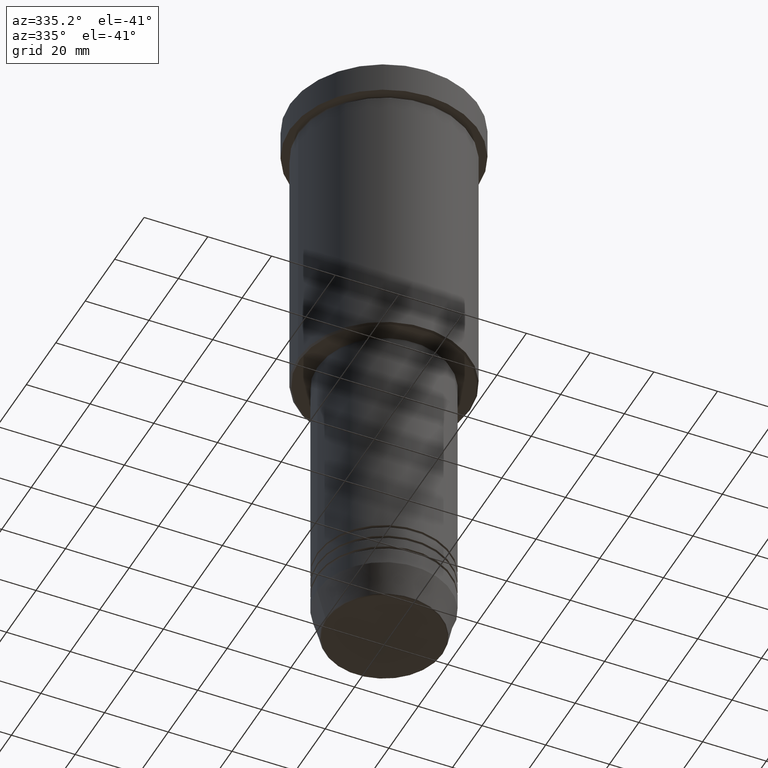
[diagram: clean part render]
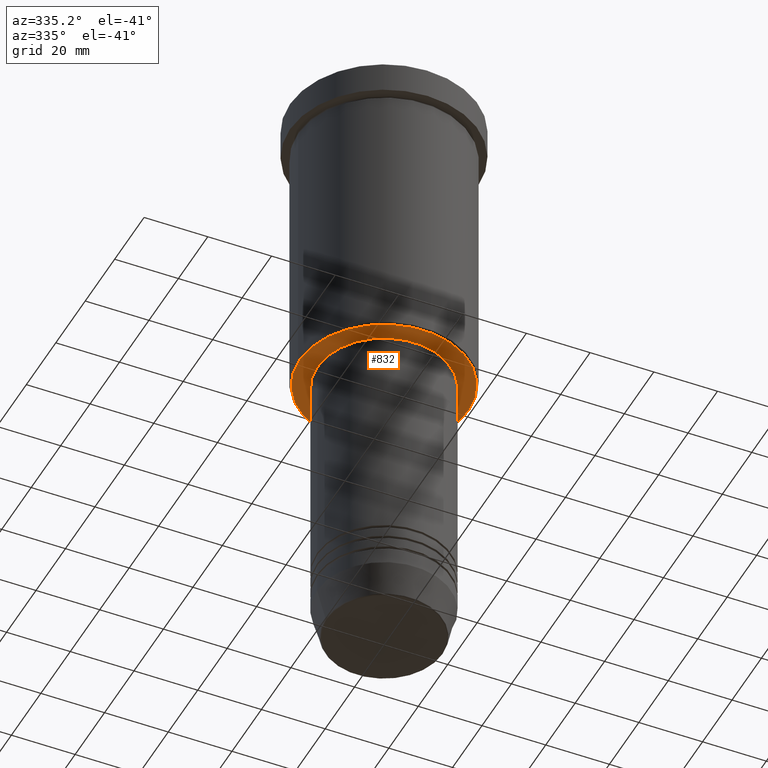
[diagram: same view with one face highlighted and labeled with its STEP entity id]
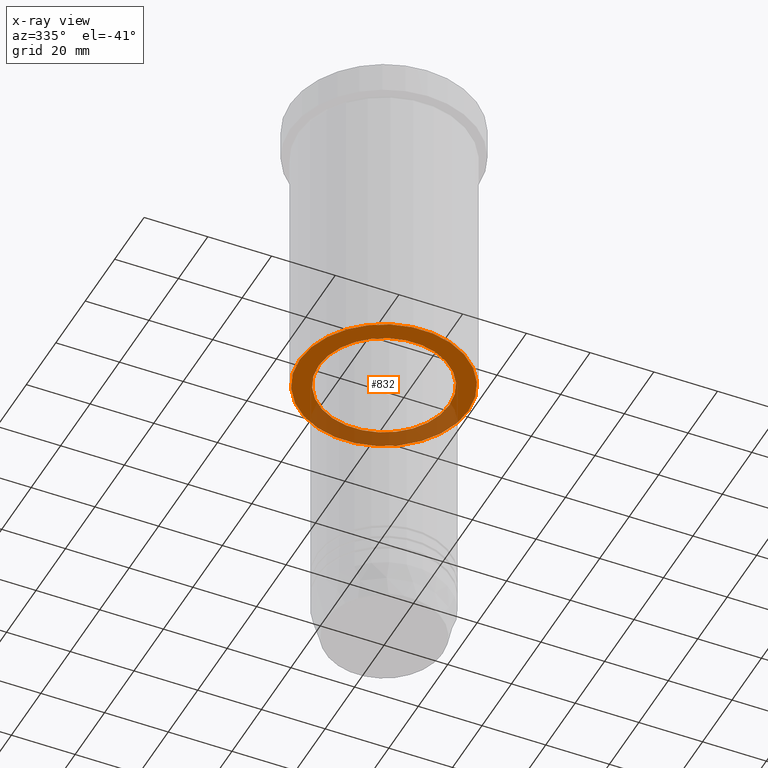
[diagram: x-ray of the same camera — body ghosted, the highlighted face saturated]
A machine part, auxiliary view. The second image highlights one B-rep face of the part: STEP entity #832.
The next image is the same camera in x-ray: the body ghosted, the highlighted face saturated — about 33% of this face is hidden behind the body in this view.
In plain terms, the highlighted planar face has unit normal (0, 0, -1).
Its self-contained STEP definition (entity closure, byte-faithful):
#12 = CIRCLE ( 'NONE', #516, 20.50000000000000000 ) ;
#45 = ORIENTED_EDGE ( 'NONE', *, *, #967, .T. ) ;
#60 = CARTESIAN_POINT ( 'NONE',  ( 20.50000000000000000, 0.000000000000000000, -96.00000000000000000 ) ) ;
#96 = VERTEX_POINT ( 'NONE', #60 ) ;
#117 = DIRECTION ( 'NONE',  ( -1.000000000000000000, 0.000000000000000000, -0.000000000000000000 ) ) ;
#141 = DIRECTION ( 'NONE',  ( -1.000000000000000000, 0.000000000000000000, 0.000000000000000000 ) ) ;
#195 = CIRCLE ( 'NONE', #479, 26.49999999999996803 ) ;
#197 = DIRECTION ( 'NONE',  ( 0.000000000000000000, 0.000000000000000000, -1.000000000000000000 ) ) ;
#202 = CARTESIAN_POINT ( 'NONE',  ( -20.50000000000000000, 2.510525938252074481E-15, -96.00000000000000000 ) ) ;
#216 = FACE_OUTER_BOUND ( 'NONE', #867, .T. ) ;
#305 = PLANE ( 'NONE',  #566 ) ;
#392 = CARTESIAN_POINT ( 'NONE',  ( -26.49999999999996803, 3.275930187719167974E-15, -96.00000000000000000 ) ) ;
#478 = AXIS2_PLACEMENT_3D ( 'NONE', #816, #1095, #1010 ) ;
#479 = AXIS2_PLACEMENT_3D ( 'NONE', #578, #961, #141 ) ;
#494 = DIRECTION ( 'NONE',  ( 0.000000000000000000, 0.000000000000000000, -1.000000000000000000 ) ) ;
#516 = AXIS2_PLACEMENT_3D ( 'NONE', #1031, #672, #852 ) ;
#566 = AXIS2_PLACEMENT_3D ( 'NONE', #574, #494, #117 ) ;
#574 = CARTESIAN_POINT ( 'NONE',  ( 0.000000000000000000, 27.00000000000000355, -96.00000000000000000 ) ) ;
#578 = CARTESIAN_POINT ( 'NONE',  ( 0.000000000000000000, 0.000000000000000000, -96.00000000000000000 ) ) ;
#620 = ORIENTED_EDGE ( 'NONE', *, *, #884, .T. ) ;
#647 = EDGE_LOOP ( 'NONE', ( #863, #963 ) ) ;
#672 = DIRECTION ( 'NONE',  ( -0.000000000000000000, -0.000000000000000000, 1.000000000000000000 ) ) ;
#708 = EDGE_CURVE ( 'NONE', #741, #96, #831, .T. ) ;
#741 = VERTEX_POINT ( 'NONE', #202 ) ;
#765 = EDGE_CURVE ( 'NONE', #96, #741, #12, .T. ) ;
#816 = CARTESIAN_POINT ( 'NONE',  ( 0.000000000000000000, 0.000000000000000000, -96.00000000000000000 ) ) ;
#831 = CIRCLE ( 'NONE', #478, 20.50000000000000000 ) ;
#832 = ADVANCED_FACE ( 'NONE', ( #216, #834 ), #305, .T. ) ;
#834 = FACE_BOUND ( 'NONE', #647, .T. ) ;
#852 = DIRECTION ( 'NONE',  ( 1.000000000000000000, 0.000000000000000000, 0.000000000000000000 ) ) ;
#862 = VERTEX_POINT ( 'NONE', #1084 ) ;
#863 = ORIENTED_EDGE ( 'NONE', *, *, #765, .T. ) ;
#867 = EDGE_LOOP ( 'NONE', ( #45, #620 ) ) ;
#884 = EDGE_CURVE ( 'NONE', #955, #862, #1079, .T. ) ;
#911 = CARTESIAN_POINT ( 'NONE',  ( 0.000000000000000000, 0.000000000000000000, -96.00000000000000000 ) ) ;
#955 = VERTEX_POINT ( 'NONE', #392 ) ;
#961 = DIRECTION ( 'NONE',  ( 0.000000000000000000, 0.000000000000000000, -1.000000000000000000 ) ) ;
#963 = ORIENTED_EDGE ( 'NONE', *, *, #708, .T. ) ;
#967 = EDGE_CURVE ( 'NONE', #862, #955, #195, .T. ) ;
#989 = AXIS2_PLACEMENT_3D ( 'NONE', #911, #197, #997 ) ;
#997 = DIRECTION ( 'NONE',  ( -1.000000000000000000, 0.000000000000000000, 0.000000000000000000 ) ) ;
#1010 = DIRECTION ( 'NONE',  ( 1.000000000000000000, 0.000000000000000000, 0.000000000000000000 ) ) ;
#1031 = CARTESIAN_POINT ( 'NONE',  ( 0.000000000000000000, 0.000000000000000000, -96.00000000000000000 ) ) ;
#1079 = CIRCLE ( 'NONE', #989, 26.49999999999996803 ) ;
#1084 = CARTESIAN_POINT ( 'NONE',  ( 26.49999999999996803, 0.000000000000000000, -96.00000000000000000 ) ) ;
#1095 = DIRECTION ( 'NONE',  ( -0.000000000000000000, -0.000000000000000000, 1.000000000000000000 ) ) ;